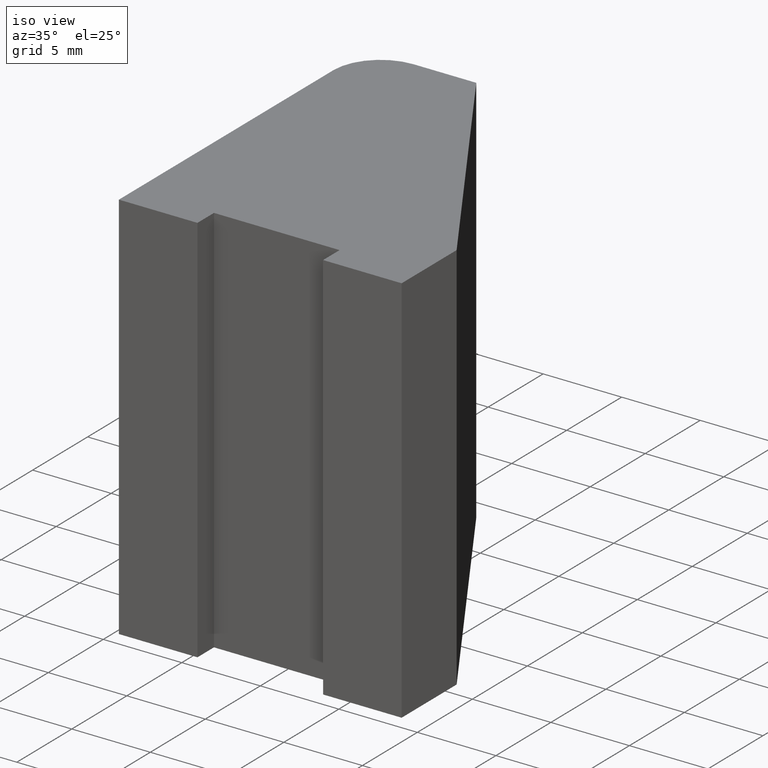
[diagram: clean part render]
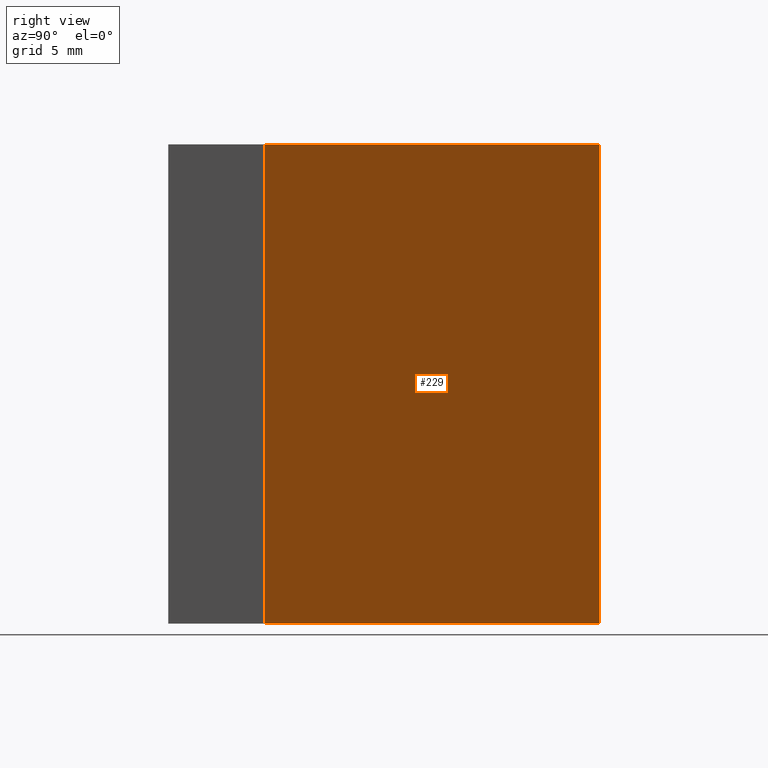
[diagram: tour spotlight — one face highlighted and labeled with its STEP entity id]
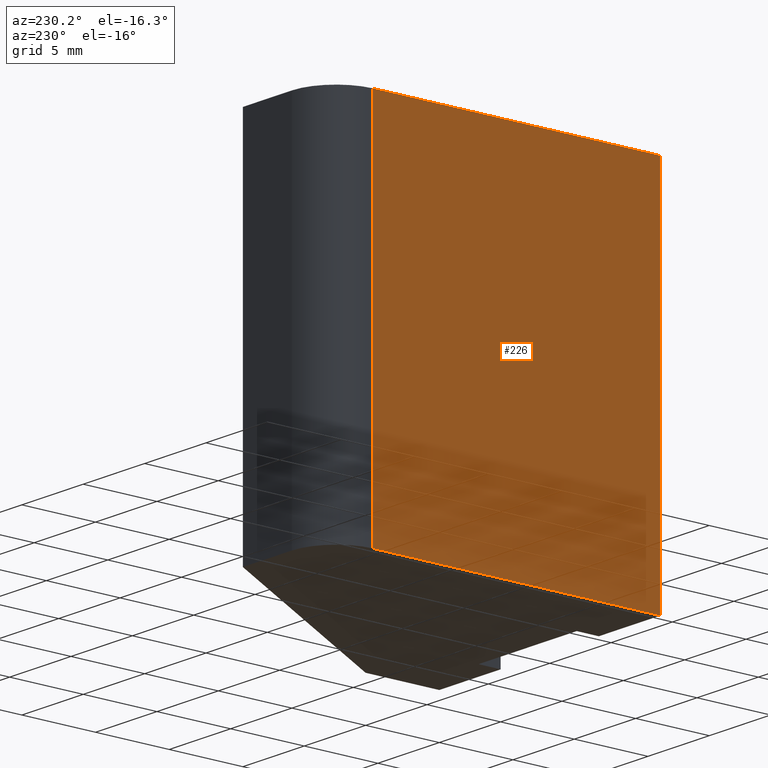
[diagram: tour spotlight — one face highlighted and labeled with its STEP entity id]
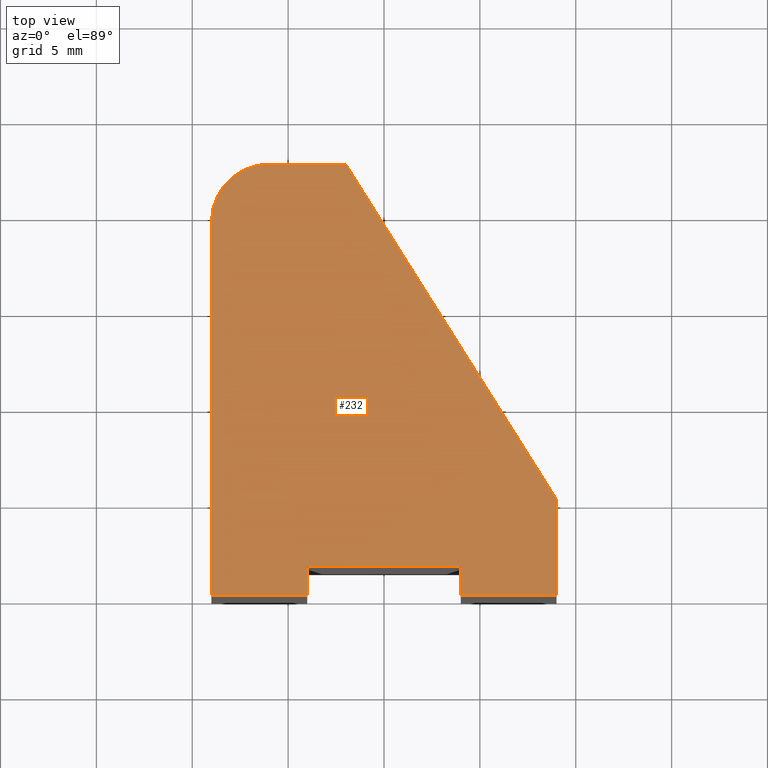
[diagram: tour spotlight — one face highlighted and labeled with its STEP entity id]
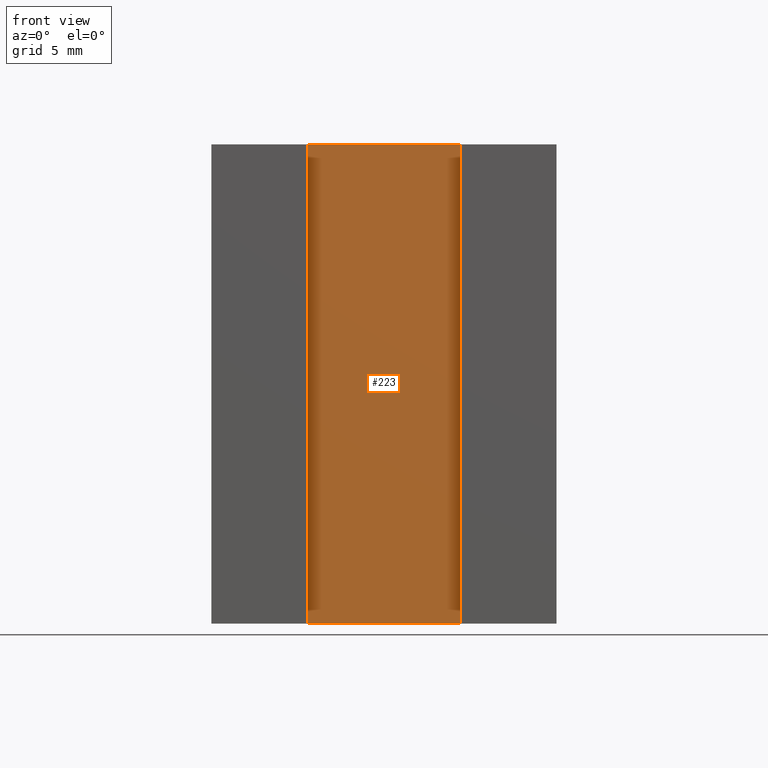
[diagram: tour spotlight — one face highlighted and labeled with its STEP entity id]
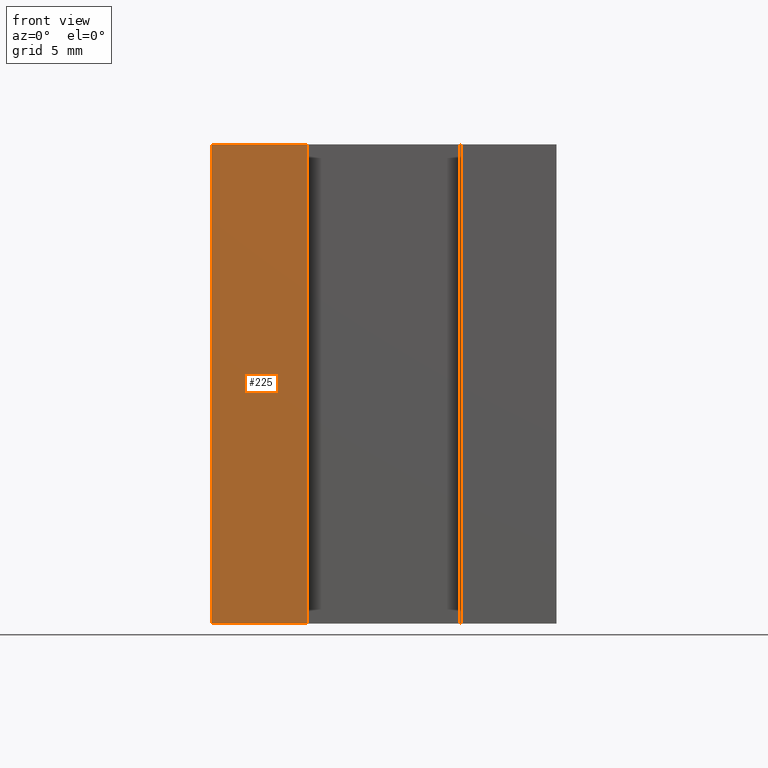
[diagram: tour spotlight — one face highlighted and labeled with its STEP entity id]
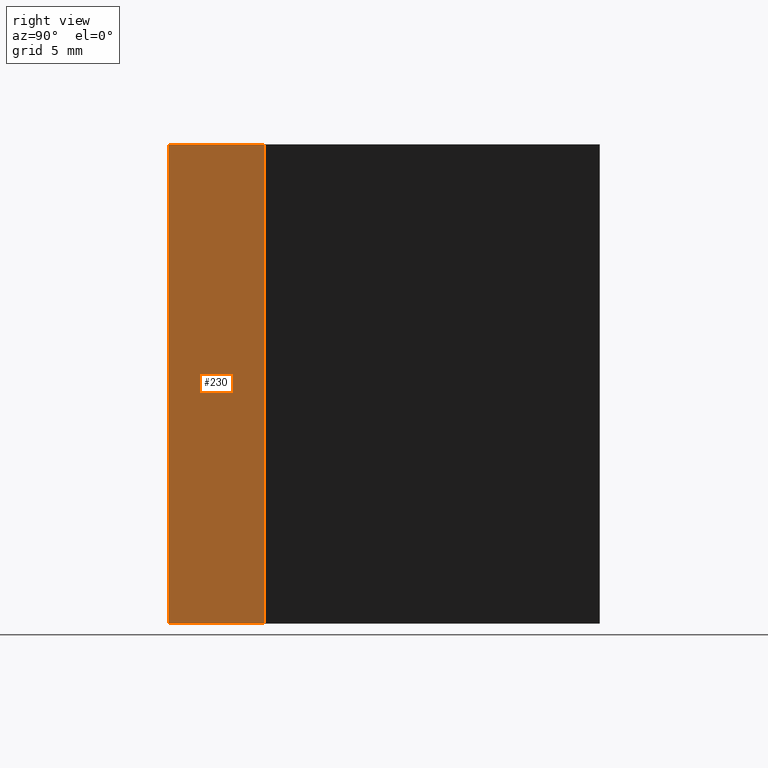
[diagram: tour spotlight — one face highlighted and labeled with its STEP entity id]
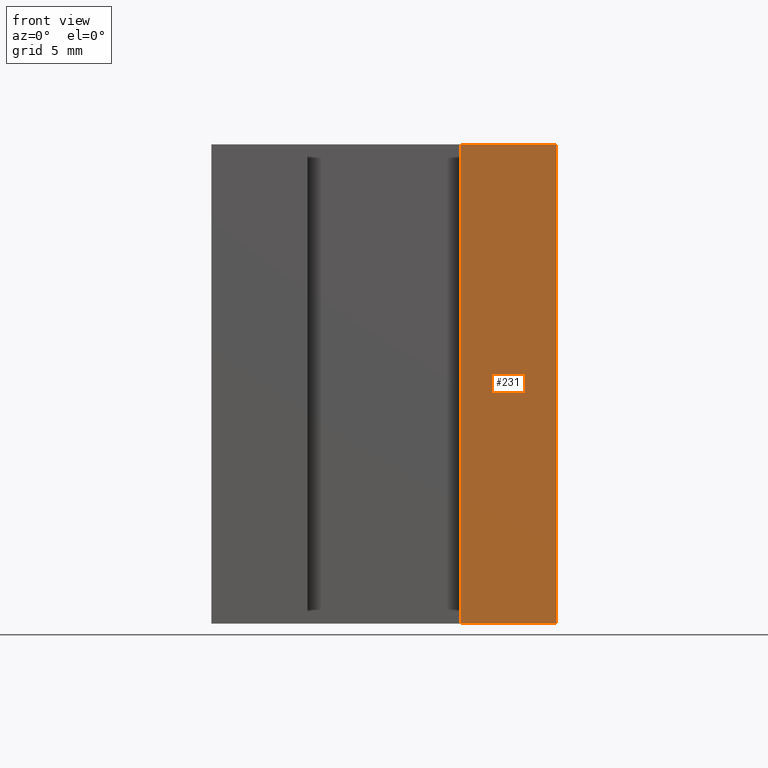
[diagram: tour spotlight — one face highlighted and labeled with its STEP entity id]
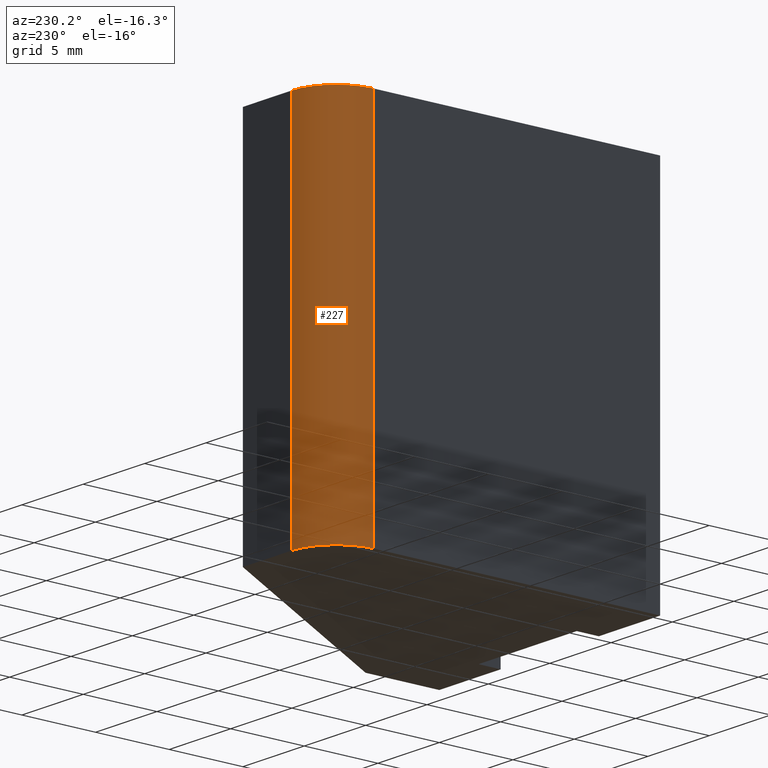
[diagram: tour spotlight — one face highlighted and labeled with its STEP entity id]
A machine part: a face-by-face anatomy tour. The part has 12 B-rep faces; the first image is the clean iso view, then the 8 largest visible faces are spotlighted one at a time (largest first), each with its STEP entity span.

Face 1 — right view, entity #229. In plain terms, the highlighted planar face has unit normal (0.8466, 0.5322, 0).
Definition (entity closure, byte-faithful):
#26=FACE_OUTER_BOUND('',#38,.T.);
#38=EDGE_LOOP('',(#188,#189,#190,#191));
#52=LINE('',#346,#80);
#66=LINE('',#376,#94);
#67=LINE('',#379,#95);
#68=LINE('',#380,#96);
#80=VECTOR('',#281,10.);
#94=VECTOR('',#311,10.);
#95=VECTOR('',#314,10.);
#96=VECTOR('',#315,10.);
#101=VERTEX_POINT('',#328);
#109=VERTEX_POINT('',#344);
#117=VERTEX_POINT('',#374);
#118=VERTEX_POINT('',#378);
#129=EDGE_CURVE('',#101,#109,#52,.T.);
#144=EDGE_CURVE('',#117,#109,#66,.T.);
#145=EDGE_CURVE('',#117,#118,#67,.T.);
#146=EDGE_CURVE('',#118,#101,#68,.T.);
#188=ORIENTED_EDGE('',*,*,#145,.T.);
#189=ORIENTED_EDGE('',*,*,#146,.T.);
#190=ORIENTED_EDGE('',*,*,#129,.T.);
#191=ORIENTED_EDGE('',*,*,#144,.F.);
#217=PLANE('',#263);
#229=ADVANCED_FACE('',(#26),#217,.T.);
#263=AXIS2_PLACEMENT_3D('',#377,#312,#313);
#281=DIRECTION('',(-0.532171545218346,0.846636549211005,0.));
#311=DIRECTION('',(0.,0.,-1.));
#312=DIRECTION('center_axis',(0.846636549211005,0.532171545218346,0.));
#313=DIRECTION('ref_axis',(0.,0.,-1.));
#314=DIRECTION('',(0.532171545218346,-0.846636549211005,0.));
#315=DIRECTION('',(0.,0.,-1.));
#328=CARTESIAN_POINT('',(9.,5.,-12.5));
#344=CARTESIAN_POINT('',(-2.,22.5,-12.5));
#346=CARTESIAN_POINT('',(-2.,22.5,-12.5));
#374=CARTESIAN_POINT('',(-2.,22.5,12.5));
#376=CARTESIAN_POINT('',(-2.,22.5,0.));
#377=CARTESIAN_POINT('Origin',(-2.,22.5,0.));
#378=CARTESIAN_POINT('',(9.,5.,12.5));
#379=CARTESIAN_POINT('',(-2.,22.5,12.5));
#380=CARTESIAN_POINT('',(9.,5.,0.));

Face 2 — auxiliary view, entity #226. In plain terms, the highlighted planar face has unit normal (-1, 0, 0).
Definition (entity closure, byte-faithful):
#23=FACE_OUTER_BOUND('',#35,.T.);
#35=EDGE_LOOP('',(#176,#177,#178,#179));
#50=LINE('',#341,#78);
#61=LINE('',#364,#89);
#62=LINE('',#367,#90);
#63=LINE('',#368,#91);
#78=VECTOR('',#277,10.);
#89=VECTOR('',#298,10.);
#90=VECTOR('',#301,10.);
#91=VECTOR('',#302,10.);
#106=VERTEX_POINT('',#338);
#107=VERTEX_POINT('',#340);
#114=VERTEX_POINT('',#362);
#115=VERTEX_POINT('',#366);
#126=EDGE_CURVE('',#107,#106,#50,.T.);
#138=EDGE_CURVE('',#114,#106,#61,.T.);
#139=EDGE_CURVE('',#114,#115,#62,.T.);
#140=EDGE_CURVE('',#115,#107,#63,.T.);
#176=ORIENTED_EDGE('',*,*,#139,.T.);
#177=ORIENTED_EDGE('',*,*,#140,.T.);
#178=ORIENTED_EDGE('',*,*,#126,.T.);
#179=ORIENTED_EDGE('',*,*,#138,.F.);
#215=PLANE('',#259);
#226=ADVANCED_FACE('',(#23),#215,.T.);
#259=AXIS2_PLACEMENT_3D('',#365,#299,#300);
#277=DIRECTION('',(0.,-1.,0.));
#298=DIRECTION('',(0.,0.,-1.));
#299=DIRECTION('center_axis',(-1.,0.,0.));
#300=DIRECTION('ref_axis',(0.,0.,1.));
#301=DIRECTION('',(0.,1.,0.));
#302=DIRECTION('',(0.,0.,-1.));
#338=CARTESIAN_POINT('',(-9.,0.,-12.5));
#340=CARTESIAN_POINT('',(-9.,19.5,-12.5));
#341=CARTESIAN_POINT('',(-9.,0.,-12.5));
#362=CARTESIAN_POINT('',(-9.,0.,12.5));
#364=CARTESIAN_POINT('',(-9.,0.,0.));
#365=CARTESIAN_POINT('Origin',(-9.,0.,0.));
#366=CARTESIAN_POINT('',(-9.,19.5,12.5));
#367=CARTESIAN_POINT('',(-9.,0.,12.5));
#368=CARTESIAN_POINT('',(-9.,19.5,0.));

Face 3 — top view, entity #232. In plain terms, the highlighted planar face has unit normal (0, 0, 1).
Definition (entity closure, byte-faithful):
#29=FACE_OUTER_BOUND('',#41,.T.);
#41=EDGE_LOOP('',(#200,#201,#202,#203,#204,#205,#206,#207,#208,#209));
#43=CIRCLE('',#261,3.00000000000001);
#53=LINE('',#350,#81);
#56=LINE('',#355,#84);
#58=LINE('',#359,#86);
#60=LINE('',#363,#88);
#62=LINE('',#367,#90);
#65=LINE('',#375,#93);
#67=LINE('',#379,#95);
#69=LINE('',#383,#97);
#71=LINE('',#386,#99);
#81=VECTOR('',#284,10.);
#84=VECTOR('',#289,10.);
#86=VECTOR('',#293,10.);
#88=VECTOR('',#297,10.);
#90=VECTOR('',#301,10.);
#93=VECTOR('',#310,10.);
#95=VECTOR('',#314,10.);
#97=VECTOR('',#318,10.);
#99=VECTOR('',#322,10.);
#110=VERTEX_POINT('',#348);
#111=VERTEX_POINT('',#349);
#112=VERTEX_POINT('',#354);
#113=VERTEX_POINT('',#358);
#114=VERTEX_POINT('',#362);
#115=VERTEX_POINT('',#366);
#116=VERTEX_POINT('',#370);
#117=VERTEX_POINT('',#374);
#118=VERTEX_POINT('',#378);
#119=VERTEX_POINT('',#382);
#130=EDGE_CURVE('',#110,#111,#53,.T.);
#133=EDGE_CURVE('',#111,#112,#56,.T.);
#135=EDGE_CURVE('',#112,#113,#58,.T.);
#137=EDGE_CURVE('',#113,#114,#60,.T.);
#139=EDGE_CURVE('',#114,#115,#62,.T.);
#141=EDGE_CURVE('',#115,#116,#43,.T.);
#143=EDGE_CURVE('',#116,#117,#65,.T.);
#145=EDGE_CURVE('',#117,#118,#67,.T.);
#147=EDGE_CURVE('',#118,#119,#69,.T.);
#149=EDGE_CURVE('',#119,#110,#71,.T.);
#200=ORIENTED_EDGE('',*,*,#130,.F.);
#201=ORIENTED_EDGE('',*,*,#149,.F.);
#202=ORIENTED_EDGE('',*,*,#147,.F.);
#203=ORIENTED_EDGE('',*,*,#145,.F.);
#204=ORIENTED_EDGE('',*,*,#143,.F.);
#205=ORIENTED_EDGE('',*,*,#141,.F.);
#206=ORIENTED_EDGE('',*,*,#139,.F.);
#207=ORIENTED_EDGE('',*,*,#137,.F.);
#208=ORIENTED_EDGE('',*,*,#135,.F.);
#209=ORIENTED_EDGE('',*,*,#133,.F.);
#220=PLANE('',#266);
#232=ADVANCED_FACE('',(#29),#220,.T.);
#261=AXIS2_PLACEMENT_3D('',#371,#305,#306);
#266=AXIS2_PLACEMENT_3D('',#387,#323,#324);
#284=DIRECTION('',(0.,1.,0.));
#289=DIRECTION('',(-1.,0.,0.));
#293=DIRECTION('',(0.,-1.,0.));
#297=DIRECTION('',(-1.,0.,0.));
#301=DIRECTION('',(0.,1.,0.));
#305=DIRECTION('center_axis',(0.,0.,-1.));
#306=DIRECTION('ref_axis',(0.,-1.,0.));
#310=DIRECTION('',(1.,-1.11022302462516E-15,0.));
#314=DIRECTION('',(0.532171545218346,-0.846636549211005,0.));
#318=DIRECTION('',(2.22044604925031E-16,-1.,0.));
#322=DIRECTION('',(-1.,4.93038065763132E-32,0.));
#323=DIRECTION('center_axis',(0.,0.,1.));
#324=DIRECTION('ref_axis',(1.,0.,0.));
#348=CARTESIAN_POINT('',(4.,2.46519032881566E-31,12.5));
#349=CARTESIAN_POINT('',(4.,1.5,12.5));
#350=CARTESIAN_POINT('',(4.,2.46519032881566E-31,12.5));
#354=CARTESIAN_POINT('',(-4.,1.5,12.5));
#355=CARTESIAN_POINT('',(4.,1.5,12.5));
#358=CARTESIAN_POINT('',(-4.,0.,12.5));
#359=CARTESIAN_POINT('',(-4.,1.5,12.5));
#362=CARTESIAN_POINT('',(-9.,0.,12.5));
#363=CARTESIAN_POINT('',(-4.,0.,12.5));
#366=CARTESIAN_POINT('',(-9.,19.5,12.5));
#367=CARTESIAN_POINT('',(-9.,0.,12.5));
#370=CARTESIAN_POINT('',(-6.,22.5,12.5));
#371=CARTESIAN_POINT('Origin',(-6.,19.5,12.5));
#374=CARTESIAN_POINT('',(-2.,22.5,12.5));
#375=CARTESIAN_POINT('',(-6.,22.5,12.5));
#378=CARTESIAN_POINT('',(9.,5.,12.5));
#379=CARTESIAN_POINT('',(-2.,22.5,12.5));
#382=CARTESIAN_POINT('',(9.,0.,12.5));
#383=CARTESIAN_POINT('',(9.,5.,12.5));
#386=CARTESIAN_POINT('',(9.,0.,12.5));
#387=CARTESIAN_POINT('Origin',(-1.48548663187218,9.23831091868498,12.5));

Face 4 — front view, entity #223. In plain terms, the highlighted planar face has unit normal (0, -1, 0).
Definition (entity closure, byte-faithful):
#20=FACE_OUTER_BOUND('',#32,.T.);
#32=EDGE_LOOP('',(#164,#165,#166,#167));
#47=LINE('',#335,#75);
#54=LINE('',#351,#82);
#56=LINE('',#355,#84);
#57=LINE('',#356,#85);
#75=VECTOR('',#274,10.);
#82=VECTOR('',#285,10.);
#84=VECTOR('',#289,10.);
#85=VECTOR('',#290,10.);
#103=VERTEX_POINT('',#332);
#104=VERTEX_POINT('',#334);
#111=VERTEX_POINT('',#349);
#112=VERTEX_POINT('',#354);
#123=EDGE_CURVE('',#104,#103,#47,.T.);
#131=EDGE_CURVE('',#111,#103,#54,.T.);
#133=EDGE_CURVE('',#111,#112,#56,.T.);
#134=EDGE_CURVE('',#112,#104,#57,.T.);
#164=ORIENTED_EDGE('',*,*,#133,.T.);
#165=ORIENTED_EDGE('',*,*,#134,.T.);
#166=ORIENTED_EDGE('',*,*,#123,.T.);
#167=ORIENTED_EDGE('',*,*,#131,.F.);
#212=PLANE('',#256);
#223=ADVANCED_FACE('',(#20),#212,.T.);
#256=AXIS2_PLACEMENT_3D('',#353,#287,#288);
#274=DIRECTION('',(1.,0.,0.));
#285=DIRECTION('',(0.,0.,-1.));
#287=DIRECTION('center_axis',(0.,-1.,0.));
#288=DIRECTION('ref_axis',(0.,0.,-1.));
#289=DIRECTION('',(-1.,0.,0.));
#290=DIRECTION('',(0.,0.,-1.));
#332=CARTESIAN_POINT('',(4.,1.5,-12.5));
#334=CARTESIAN_POINT('',(-4.,1.5,-12.5));
#335=CARTESIAN_POINT('',(4.,1.5,-12.5));
#349=CARTESIAN_POINT('',(4.,1.5,12.5));
#351=CARTESIAN_POINT('',(4.,1.5,0.));
#353=CARTESIAN_POINT('Origin',(4.,1.5,0.));
#354=CARTESIAN_POINT('',(-4.,1.5,12.5));
#355=CARTESIAN_POINT('',(4.,1.5,12.5));
#356=CARTESIAN_POINT('',(-4.,1.5,0.));

Face 5 — front view, entity #225. In plain terms, the highlighted planar face has unit normal (0, -1, 0).
Definition (entity closure, byte-faithful):
#22=FACE_OUTER_BOUND('',#34,.T.);
#34=EDGE_LOOP('',(#172,#173,#174,#175));
#49=LINE('',#339,#77);
#59=LINE('',#360,#87);
#60=LINE('',#363,#88);
#61=LINE('',#364,#89);
#77=VECTOR('',#276,10.);
#87=VECTOR('',#294,10.);
#88=VECTOR('',#297,10.);
#89=VECTOR('',#298,10.);
#105=VERTEX_POINT('',#336);
#106=VERTEX_POINT('',#338);
#113=VERTEX_POINT('',#358);
#114=VERTEX_POINT('',#362);
#125=EDGE_CURVE('',#106,#105,#49,.T.);
#136=EDGE_CURVE('',#113,#105,#59,.T.);
#137=EDGE_CURVE('',#113,#114,#60,.T.);
#138=EDGE_CURVE('',#114,#106,#61,.T.);
#172=ORIENTED_EDGE('',*,*,#137,.T.);
#173=ORIENTED_EDGE('',*,*,#138,.T.);
#174=ORIENTED_EDGE('',*,*,#125,.T.);
#175=ORIENTED_EDGE('',*,*,#136,.F.);
#214=PLANE('',#258);
#225=ADVANCED_FACE('',(#22),#214,.T.);
#258=AXIS2_PLACEMENT_3D('',#361,#295,#296);
#276=DIRECTION('',(1.,0.,0.));
#294=DIRECTION('',(0.,0.,-1.));
#295=DIRECTION('center_axis',(0.,-1.,0.));
#296=DIRECTION('ref_axis',(0.,0.,-1.));
#297=DIRECTION('',(-1.,0.,0.));
#298=DIRECTION('',(0.,0.,-1.));
#336=CARTESIAN_POINT('',(-4.,0.,-12.5));
#338=CARTESIAN_POINT('',(-9.,0.,-12.5));
#339=CARTESIAN_POINT('',(-4.,0.,-12.5));
#358=CARTESIAN_POINT('',(-4.,0.,12.5));
#360=CARTESIAN_POINT('',(-4.,0.,0.));
#361=CARTESIAN_POINT('Origin',(-4.,0.,0.));
#362=CARTESIAN_POINT('',(-9.,0.,12.5));
#363=CARTESIAN_POINT('',(-4.,0.,12.5));
#364=CARTESIAN_POINT('',(-9.,0.,0.));

Face 6 — right view, entity #230. In plain terms, the highlighted planar face has unit normal (1, 0, 0).
Definition (entity closure, byte-faithful):
#27=FACE_OUTER_BOUND('',#39,.T.);
#39=EDGE_LOOP('',(#192,#193,#194,#195));
#44=LINE('',#329,#72);
#68=LINE('',#380,#96);
#69=LINE('',#383,#97);
#70=LINE('',#384,#98);
#72=VECTOR('',#271,10.);
#96=VECTOR('',#315,10.);
#97=VECTOR('',#318,10.);
#98=VECTOR('',#319,10.);
#100=VERTEX_POINT('',#327);
#101=VERTEX_POINT('',#328);
#118=VERTEX_POINT('',#378);
#119=VERTEX_POINT('',#382);
#120=EDGE_CURVE('',#100,#101,#44,.T.);
#146=EDGE_CURVE('',#118,#101,#68,.T.);
#147=EDGE_CURVE('',#118,#119,#69,.T.);
#148=EDGE_CURVE('',#100,#119,#70,.T.);
#192=ORIENTED_EDGE('',*,*,#147,.T.);
#193=ORIENTED_EDGE('',*,*,#148,.F.);
#194=ORIENTED_EDGE('',*,*,#120,.T.);
#195=ORIENTED_EDGE('',*,*,#146,.F.);
#218=PLANE('',#264);
#230=ADVANCED_FACE('',(#27),#218,.T.);
#264=AXIS2_PLACEMENT_3D('',#381,#316,#317);
#271=DIRECTION('',(-2.22044604925031E-16,1.,0.));
#315=DIRECTION('',(0.,0.,-1.));
#316=DIRECTION('center_axis',(1.,2.22044604925031E-16,0.));
#317=DIRECTION('ref_axis',(0.,0.,-1.));
#318=DIRECTION('',(2.22044604925031E-16,-1.,0.));
#319=DIRECTION('',(0.,0.,1.));
#327=CARTESIAN_POINT('',(9.,0.,-12.5));
#328=CARTESIAN_POINT('',(9.,5.,-12.5));
#329=CARTESIAN_POINT('',(9.,5.,-12.5));
#378=CARTESIAN_POINT('',(9.,5.,12.5));
#380=CARTESIAN_POINT('',(9.,5.,0.));
#381=CARTESIAN_POINT('Origin',(9.,5.,0.));
#382=CARTESIAN_POINT('',(9.,0.,12.5));
#383=CARTESIAN_POINT('',(9.,5.,12.5));
#384=CARTESIAN_POINT('',(9.,0.,0.));

Face 7 — front view, entity #231. In plain terms, the highlighted planar face has unit normal (-0, -1, 0).
Definition (entity closure, byte-faithful):
#28=FACE_OUTER_BOUND('',#40,.T.);
#40=EDGE_LOOP('',(#196,#197,#198,#199));
#45=LINE('',#331,#73);
#55=LINE('',#352,#83);
#70=LINE('',#384,#98);
#71=LINE('',#386,#99);
#73=VECTOR('',#272,10.);
#83=VECTOR('',#286,10.);
#98=VECTOR('',#319,10.);
#99=VECTOR('',#322,10.);
#100=VERTEX_POINT('',#327);
#102=VERTEX_POINT('',#330);
#110=VERTEX_POINT('',#348);
#119=VERTEX_POINT('',#382);
#121=EDGE_CURVE('',#102,#100,#45,.T.);
#132=EDGE_CURVE('',#110,#102,#55,.T.);
#148=EDGE_CURVE('',#100,#119,#70,.T.);
#149=EDGE_CURVE('',#119,#110,#71,.T.);
#196=ORIENTED_EDGE('',*,*,#149,.T.);
#197=ORIENTED_EDGE('',*,*,#132,.T.);
#198=ORIENTED_EDGE('',*,*,#121,.T.);
#199=ORIENTED_EDGE('',*,*,#148,.T.);
#219=PLANE('',#265);
#231=ADVANCED_FACE('',(#28),#219,.T.);
#265=AXIS2_PLACEMENT_3D('',#385,#320,#321);
#272=DIRECTION('',(1.,-4.93038065763132E-32,0.));
#286=DIRECTION('',(0.,0.,-1.));
#319=DIRECTION('',(0.,0.,1.));
#320=DIRECTION('center_axis',(-4.93038065763132E-32,-1.,0.));
#321=DIRECTION('ref_axis',(0.,0.,-1.));
#322=DIRECTION('',(-1.,4.93038065763132E-32,0.));
#327=CARTESIAN_POINT('',(9.,0.,-12.5));
#330=CARTESIAN_POINT('',(4.,2.46519032881566E-31,-12.5));
#331=CARTESIAN_POINT('',(9.,0.,-12.5));
#348=CARTESIAN_POINT('',(4.,2.46519032881566E-31,12.5));
#352=CARTESIAN_POINT('',(4.,2.46519032881566E-31,0.));
#382=CARTESIAN_POINT('',(9.,0.,12.5));
#384=CARTESIAN_POINT('',(9.,0.,0.));
#385=CARTESIAN_POINT('Origin',(9.,0.,0.));
#386=CARTESIAN_POINT('',(9.,0.,12.5));

Face 8 — auxiliary view, entity #227. In plain terms, the highlighted cylindrical surface (partial cylindrical patch) has radius 3 mm, axis along (0, 0, 1).
Definition (entity closure, byte-faithful):
#14=CYLINDRICAL_SURFACE('',#260,3.00000000000001);
#24=FACE_OUTER_BOUND('',#36,.T.);
#36=EDGE_LOOP('',(#180,#181,#182,#183));
#42=CIRCLE('',#254,3.00000000000001);
#43=CIRCLE('',#261,3.00000000000001);
#63=LINE('',#368,#91);
#64=LINE('',#372,#92);
#91=VECTOR('',#302,10.);
#92=VECTOR('',#307,10.);
#107=VERTEX_POINT('',#340);
#108=VERTEX_POINT('',#342);
#115=VERTEX_POINT('',#366);
#116=VERTEX_POINT('',#370);
#127=EDGE_CURVE('',#108,#107,#42,.T.);
#140=EDGE_CURVE('',#115,#107,#63,.T.);
#141=EDGE_CURVE('',#115,#116,#43,.T.);
#142=EDGE_CURVE('',#116,#108,#64,.T.);
#180=ORIENTED_EDGE('',*,*,#141,.T.);
#181=ORIENTED_EDGE('',*,*,#142,.T.);
#182=ORIENTED_EDGE('',*,*,#127,.T.);
#183=ORIENTED_EDGE('',*,*,#140,.F.);
#227=ADVANCED_FACE('',(#24),#14,.T.);
#254=AXIS2_PLACEMENT_3D('',#343,#278,#279);
#260=AXIS2_PLACEMENT_3D('',#369,#303,#304);
#261=AXIS2_PLACEMENT_3D('',#371,#305,#306);
#278=DIRECTION('center_axis',(0.,0.,1.));
#279=DIRECTION('ref_axis',(0.,-1.,0.));
#302=DIRECTION('',(0.,0.,-1.));
#303=DIRECTION('center_axis',(0.,0.,1.));
#304=DIRECTION('ref_axis',(0.,-1.,0.));
#305=DIRECTION('center_axis',(0.,0.,-1.));
#306=DIRECTION('ref_axis',(0.,-1.,0.));
#307=DIRECTION('',(0.,0.,-1.));
#340=CARTESIAN_POINT('',(-9.,19.5,-12.5));
#342=CARTESIAN_POINT('',(-6.,22.5,-12.5));
#343=CARTESIAN_POINT('Origin',(-6.,19.5,-12.5));
#366=CARTESIAN_POINT('',(-9.,19.5,12.5));
#368=CARTESIAN_POINT('',(-9.,19.5,0.));
#369=CARTESIAN_POINT('Origin',(-6.,19.5,0.));
#370=CARTESIAN_POINT('',(-6.,22.5,12.5));
#371=CARTESIAN_POINT('Origin',(-6.,19.5,12.5));
#372=CARTESIAN_POINT('',(-6.,22.5,0.));